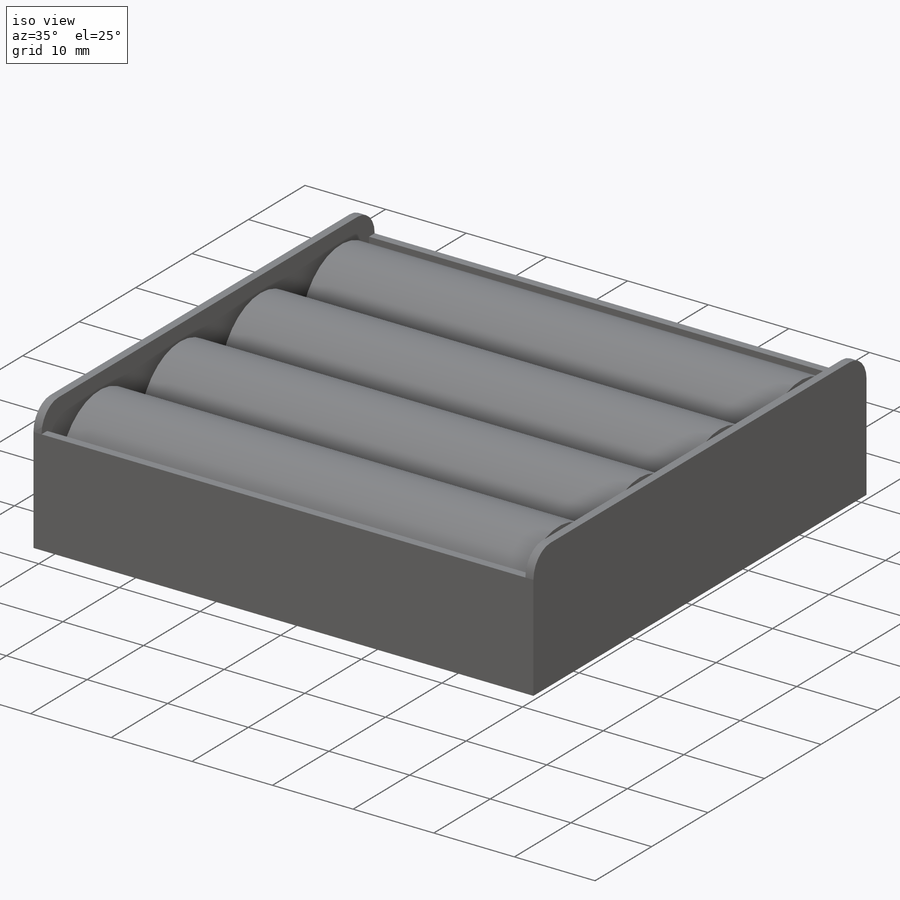
[diagram: iso view]
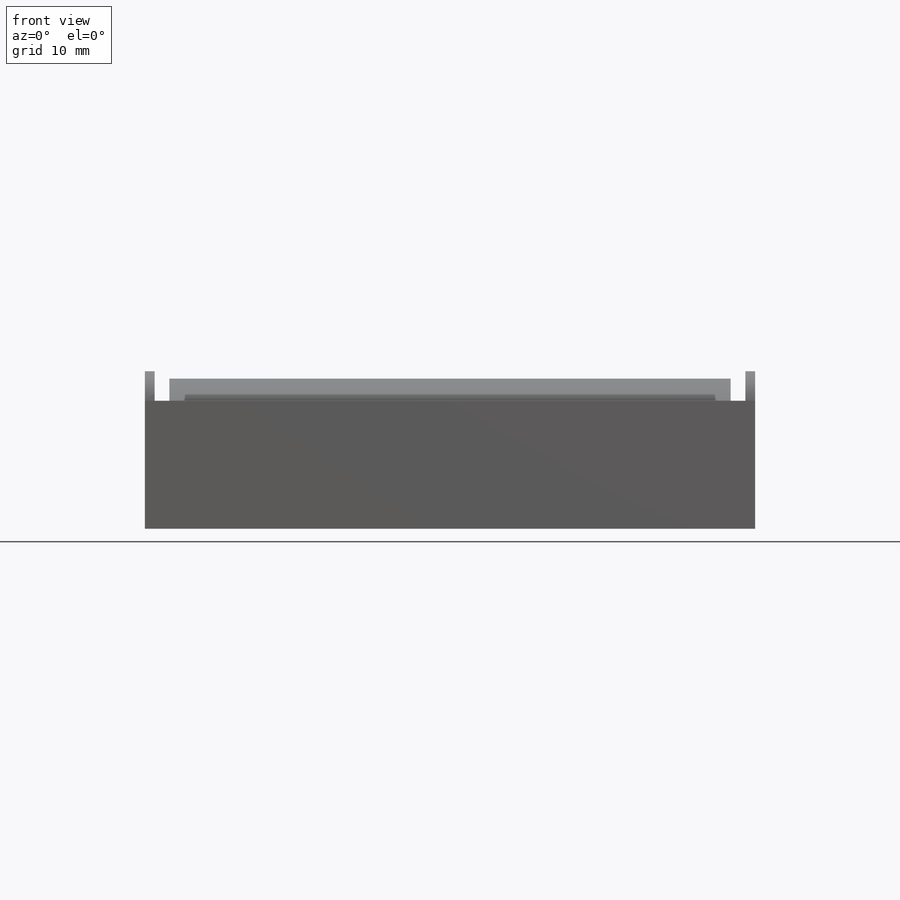
[diagram: front view]
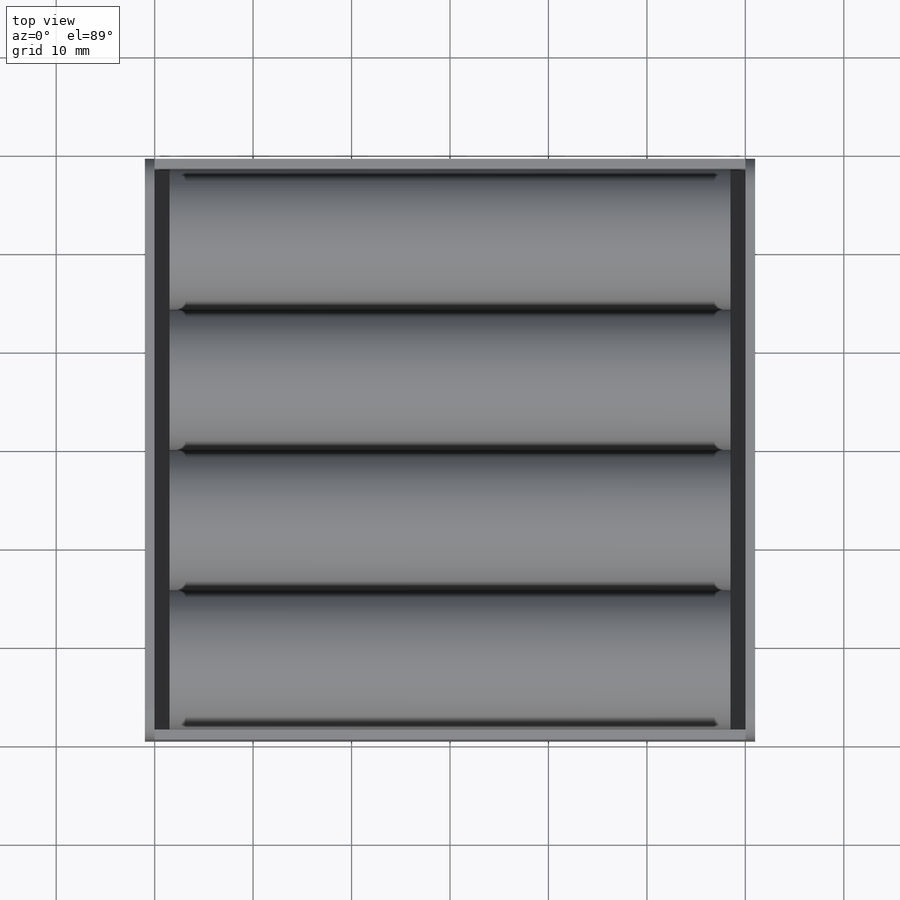
[diagram: top view]
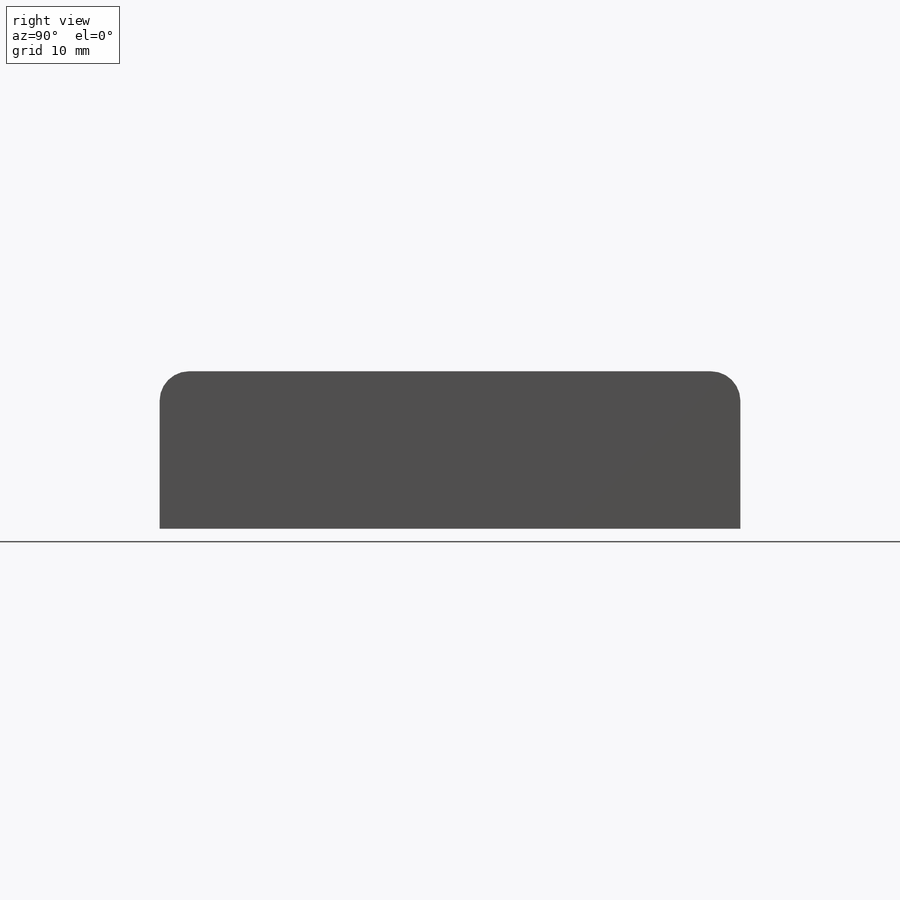
[diagram: right view]
SOLIDWORKS PART (.sldprt)
format: sldprt  version: not decoded by parser v0  size: 206,848 bytes
history: native  units: mm
features: plane x3, sketch x3, extrude x3, material x1, mirror x1 (+13 scaffold rows collapsed)
feature tree (24):
  scaffold x13  (default folders/planes/origin — collapsed)
  material  "Material <nicht festgelegt>"
  plane  "Ebene vorne"
  plane  "Ebene oben"
  plane  "Ebene rechts"
  sketch  "Skizze1"  dims[D1=29.5mm D2=13.0mm D3=1.0mm D4=~2.034637mm]
  extrude  "Linear austragen1"  Depth=30mm
  sketch  "Skizze2"  dims[D1=16.0mm]
  extrude  "Linear austragen2"  Depth=1mm
  sketch  "Skizze3"
  extrude  "Linear austragen3"  Depth=57mm
  mirror  "Spiegeln11"
decode coverage: 5 of 7 modeling features carry decoded parameters
note: ~ marks probable driven/reference dimensions
note: suppression state not decoded; provenance and decode notes live in map.json
